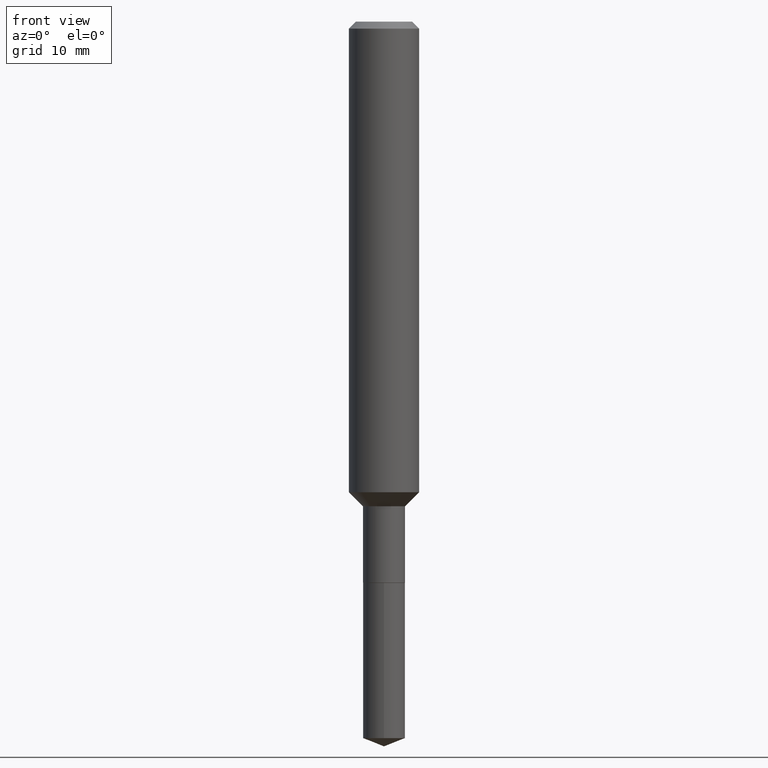
[diagram: clean part render]
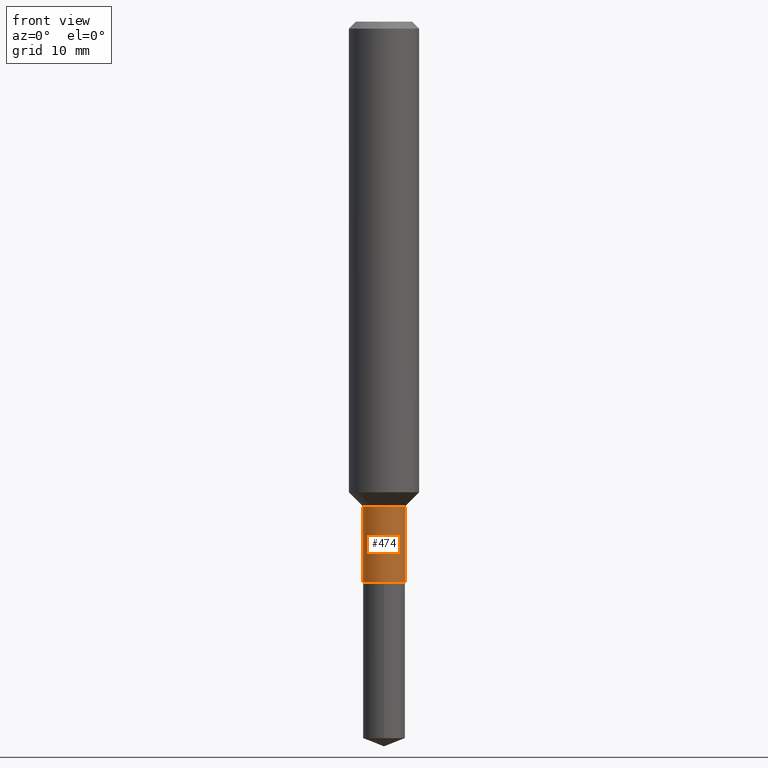
[diagram: same view with one face highlighted and labeled with its STEP entity id]
A machine part, front view. The second image highlights one B-rep face of the part: STEP entity #474.
In plain terms, the highlighted cylindrical surface (edge-blend (fillet) strip) has radius 1.7996 mm, axis along (-0, 0, 1).
Its self-contained STEP definition (entity closure, byte-faithful):
#1 = VERTEX_POINT ( 'NONE', #247 ) ;
#10 = CARTESIAN_POINT ( 'NONE',  ( -0.07084999999999999631, -5.644031665015095667E-15, -1.889200000000000212 ) ) ;
#27 = DIRECTION ( 'NONE',  ( 1.000000000000000000, -6.982962677686266711E-15, 4.876176775795935232E-29 ) ) ;
#58 = EDGE_LOOP ( 'NONE', ( #416, #347, #469, #158 ) ) ;
#62 = DIRECTION ( 'NONE',  ( -2.445468806185136597E-29, 3.491481338843145583E-15, 1.000000000000000000 ) ) ;
#66 = AXIS2_PLACEMENT_3D ( 'NONE', #225, #182, #448 ) ;
#101 = EDGE_CURVE ( 'NONE', #277, #367, #260, .T. ) ;
#117 = VERTEX_POINT ( 'NONE', #447 ) ;
#158 = ORIENTED_EDGE ( 'NONE', *, *, #445, .F. ) ;
#167 = CIRCLE ( 'NONE', #66, 0.07084999999999998244 ) ;
#182 = DIRECTION ( 'NONE',  ( -2.445468806185136597E-29, 3.491481338843145583E-15, 1.000000000000000000 ) ) ;
#200 = EDGE_CURVE ( 'NONE', #117, #1, #425, .T. ) ;
#218 = DIRECTION ( 'NONE',  ( 1.000000000000000000, -6.982962677686267499E-15, 0.000000000000000000 ) ) ;
#223 = FACE_OUTER_BOUND ( 'NONE', #58, .T. ) ;
#224 = CARTESIAN_POINT ( 'NONE',  ( -0.07084999999999998244, 5.034195282860308569E-16, -3.485065511445599567E-30 ) ) ;
#225 = CARTESIAN_POINT ( 'NONE',  ( 4.619979668644960403E-29, -6.596106545342470986E-15, -1.889200000000000212 ) ) ;
#227 = CARTESIAN_POINT ( 'NONE',  ( 0.000000000000000000, 0.000000000000000000, 0.000000000000000000 ) ) ;
#232 = CYLINDRICAL_SURFACE ( 'NONE', #365, 0.07084999999999998244 ) ;
#247 = CARTESIAN_POINT ( 'NONE',  ( 0.07084999999999995468, -6.193538746973854908E-15, -1.632200000000000095 ) ) ;
#259 = DIRECTION ( 'NONE',  ( -2.445468806185136877E-29, 3.491481338843145188E-15, 1.000000000000000000 ) ) ;
#260 = LINE ( 'NONE', #224, #428 ) ;
#277 = VERTEX_POINT ( 'NONE', #10 ) ;
#289 = AXIS2_PLACEMENT_3D ( 'NONE', #402, #62, #218 ) ;
#295 = VECTOR ( 'NONE', #389, 39.37007874015748143 ) ;
#296 = CIRCLE ( 'NONE', #289, 0.07084999999999995468 ) ;
#342 = CARTESIAN_POINT ( 'NONE',  ( -0.07084999999999995468, -5.644031665015095667E-15, -1.632200000000000095 ) ) ;
#347 = ORIENTED_EDGE ( 'NONE', *, *, #490, .T. ) ;
#365 = AXIS2_PLACEMENT_3D ( 'NONE', #227, #374, #27 ) ;
#367 = VERTEX_POINT ( 'NONE', #342 ) ;
#374 = DIRECTION ( 'NONE',  ( -2.445468806185136597E-29, 3.491481338843145583E-15, 1.000000000000000000 ) ) ;
#389 = DIRECTION ( 'NONE',  ( -2.445468806185136877E-29, 3.491481338843145188E-15, 1.000000000000000000 ) ) ;
#402 = CARTESIAN_POINT ( 'NONE',  ( 3.991494185455380396E-29, -5.698795841259782653E-15, -1.632200000000000095 ) ) ;
#416 = ORIENTED_EDGE ( 'NONE', *, *, #101, .F. ) ;
#425 = LINE ( 'NONE', #449, #295 ) ;
#428 = VECTOR ( 'NONE', #259, 39.37007874015748143 ) ;
#445 = EDGE_CURVE ( 'NONE', #367, #1, #296, .T. ) ;
#447 = CARTESIAN_POINT ( 'NONE',  ( 0.07084999999999998244, -7.090849451056543241E-15, -1.889200000000000212 ) ) ;
#448 = DIRECTION ( 'NONE',  ( 1.000000000000000000, -6.982962677686265133E-15, 0.000000000000000000 ) ) ;
#449 = CARTESIAN_POINT ( 'NONE',  ( 0.07084999999999998244, -4.947429057140718608E-16, 3.454771245651419209E-30 ) ) ;
#469 = ORIENTED_EDGE ( 'NONE', *, *, #200, .T. ) ;
#474 = ADVANCED_FACE ( 'NONE', ( #223 ), #232, .T. ) ;
#490 = EDGE_CURVE ( 'NONE', #277, #117, #167, .T. ) ;